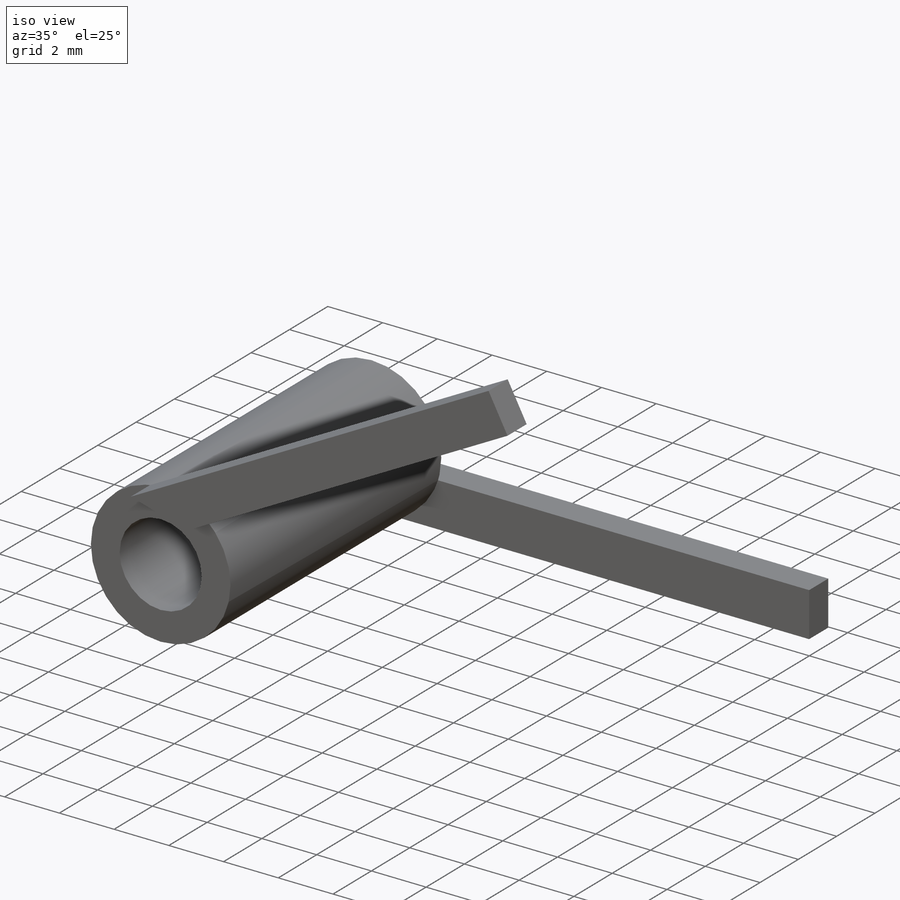
[diagram: iso view]
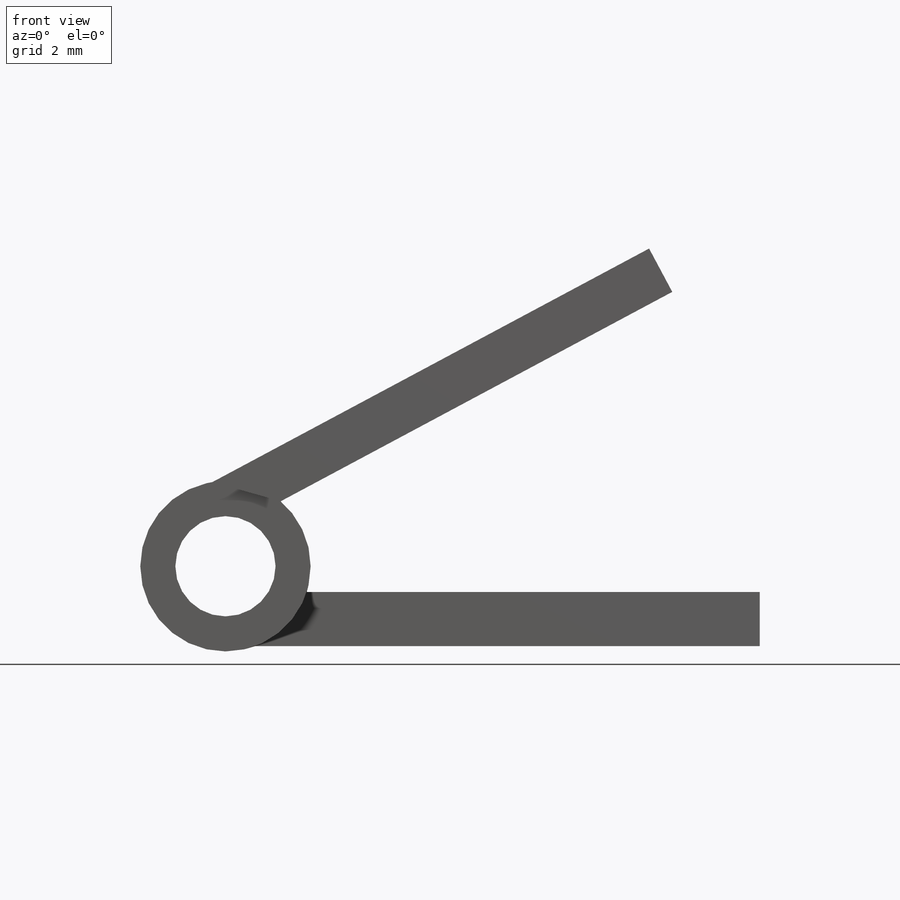
[diagram: front view]
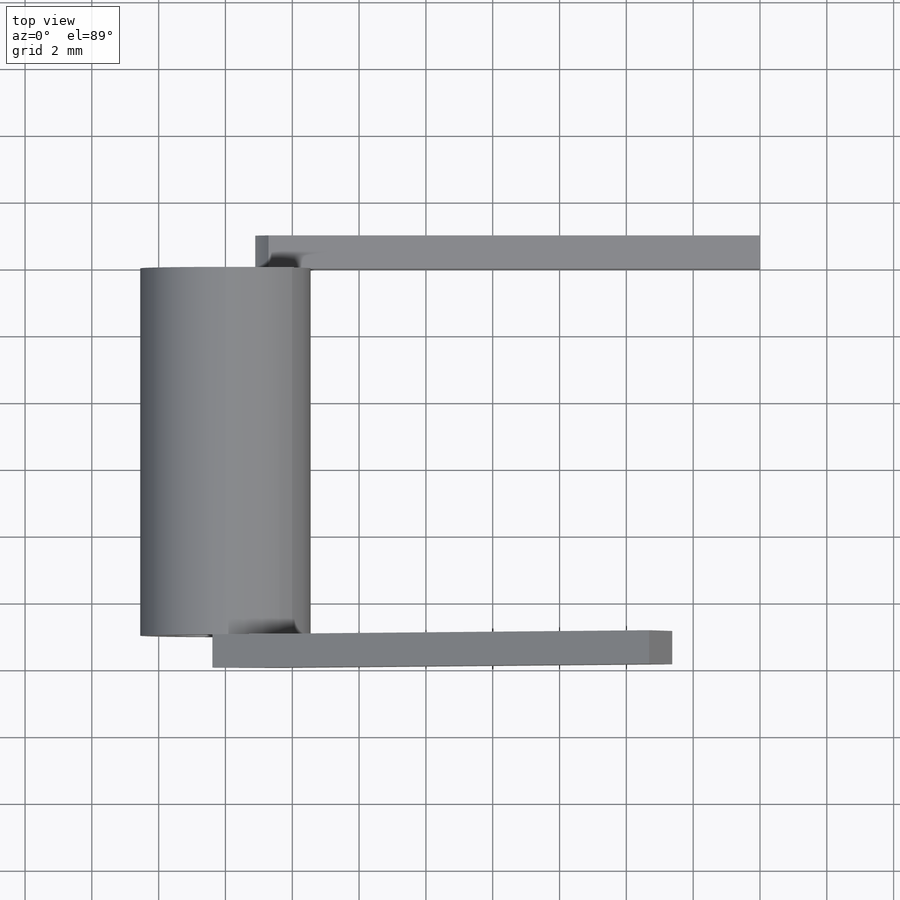
[diagram: top view]
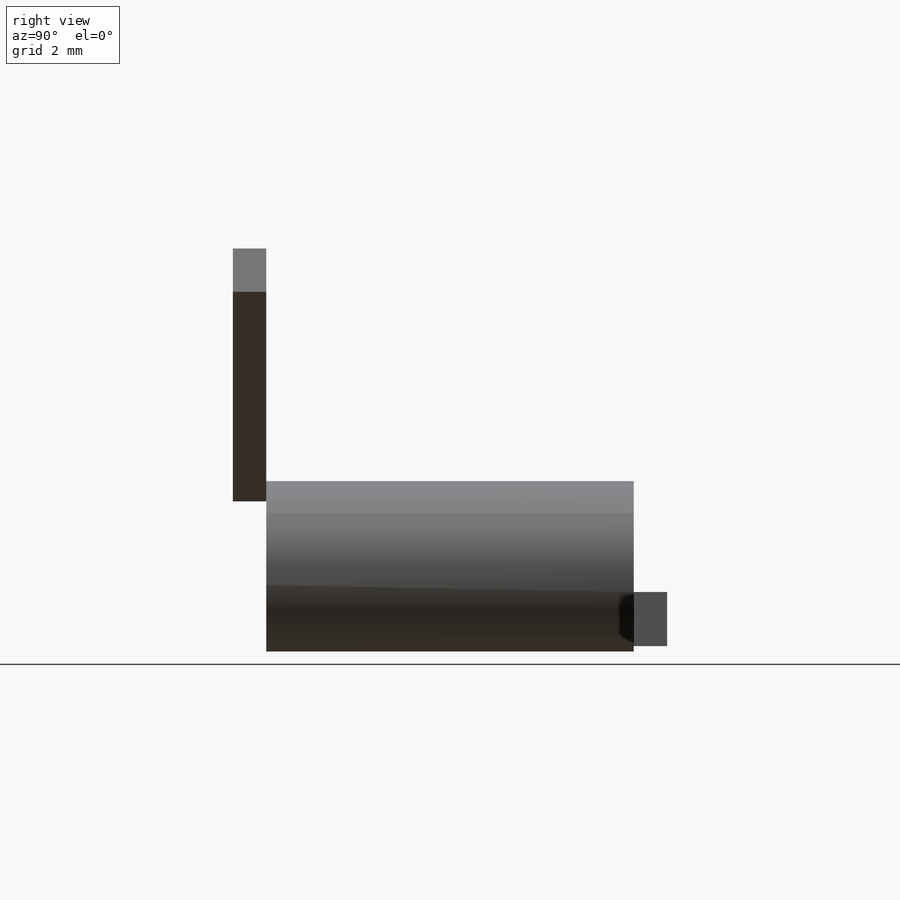
[diagram: right view]
SOLIDWORKS PART (.sldprt)
format: sldprt  version: not decoded by parser v0  size: 135,680 bytes
history: native  units: mm
features: sketch x4, extrude x3, material x1, cut_extrude x1 (+14 scaffold rows collapsed)
feature tree (23):
  scaffold x14  (default folders/planes/origin — collapsed)
  material  "Material <not specified>"
  sketch  "Sketch1"  dims[D1=5.1mm]
  extrude  "Extrude1"  Depth=11mm
  sketch  "Sketch2"
  extrude  "Extrude2"  Depth=1mm
  sketch  "Sketch3"
  extrude  "Extrude3"  Depth=1mm
  sketch  "Sketch4"  dims[D1=3.0mm]
  cut_extrude  "Extrude4"  [1 undecoded]
decode coverage: 5 of 8 modeling features carry decoded parameters
note: 1 parameter value undecoded
note: suppression state not decoded; provenance and decode notes live in map.json
